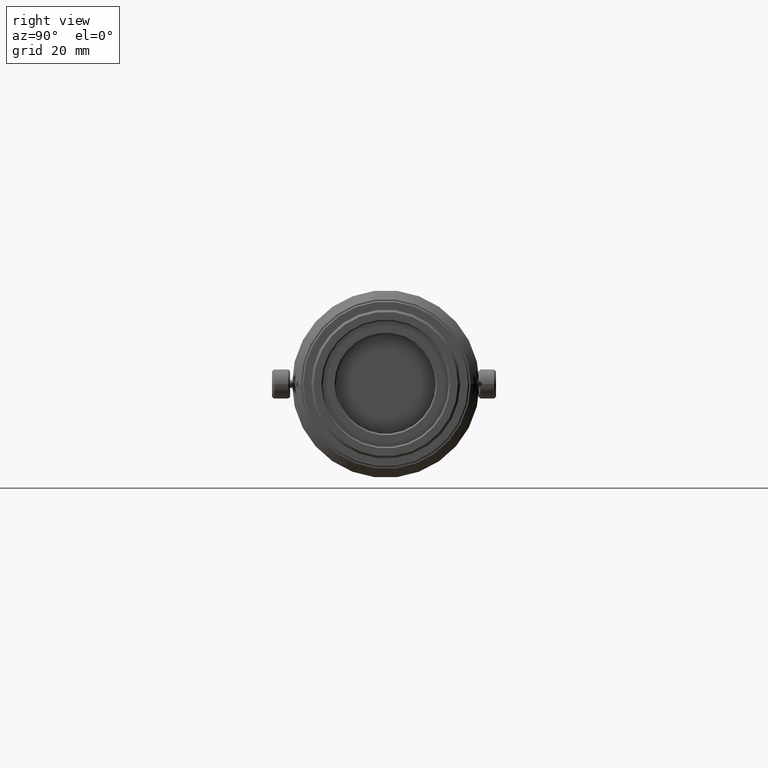
[diagram: clean part render]
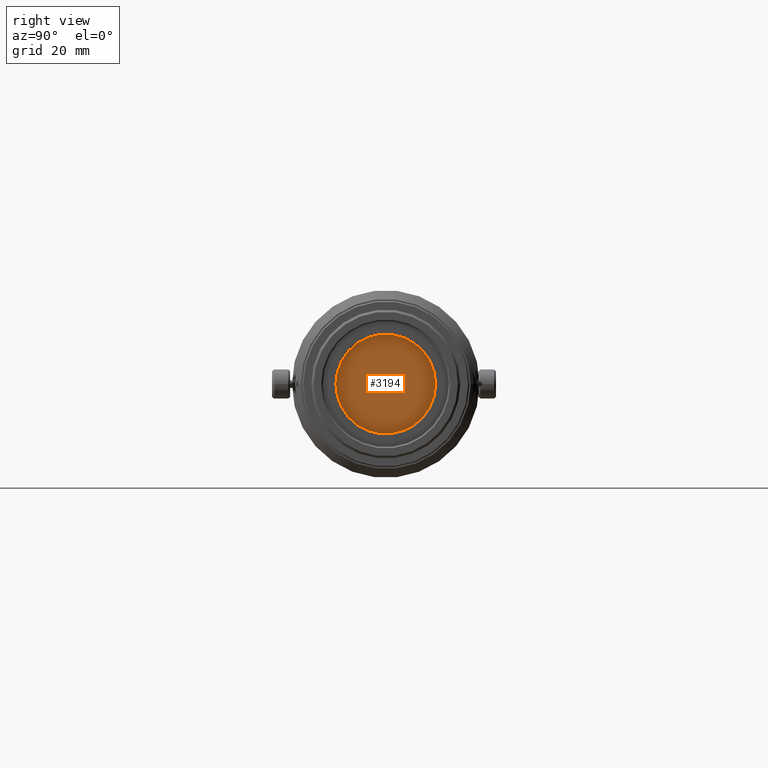
[diagram: same view with one face highlighted and labeled with its STEP entity id]
A machine part, right view. The second image highlights one B-rep face of the part: STEP entity #3194.
In plain terms, the highlighted planar face has unit normal (-1, 0, 0).
Its self-contained STEP definition (entity closure, byte-faithful):
#112 = EDGE_LOOP ( 'NONE', ( #3371, #3163 ) ) ;
#131 = DIRECTION ( 'NONE',  ( 0.0000000000000000000, 1.000000000000000000, 0.0000000000000000000 ) ) ;
#343 = EDGE_CURVE ( 'NONE', #730, #675, #3173, .T. ) ;
#611 = EDGE_CURVE ( 'NONE', #675, #730, #2364, .T. ) ;
#675 = VERTEX_POINT ( 'NONE', #877 ) ;
#681 = DIRECTION ( 'NONE',  ( 0.0000000000000000000, 1.000000000000000000, 0.0000000000000000000 ) ) ;
#730 = VERTEX_POINT ( 'NONE', #3668 ) ;
#753 = DIRECTION ( 'NONE',  ( 1.000000000000000000, -5.556191259460425289E-17, -0.0000000000000000000 ) ) ;
#772 = AXIS2_PLACEMENT_3D ( 'NONE', #1769, #3620, #131 ) ;
#783 = FACE_OUTER_BOUND ( 'NONE', #112, .T. ) ;
#877 = CARTESIAN_POINT ( 'NONE',  ( -26.00000037005256459, 8.500000000000000000, 0.0000000000000000000 ) ) ;
#1486 = PLANE ( 'NONE',  #1915 ) ;
#1769 = CARTESIAN_POINT ( 'NONE',  ( -26.00000037005256459, 1.444609748020538610E-15, 0.0000000000000000000 ) ) ;
#1826 = DIRECTION ( 'NONE',  ( -5.556191259460425289E-17, -1.000000000000000000, 0.0000000000000000000 ) ) ;
#1915 = AXIS2_PLACEMENT_3D ( 'NONE', #3591, #4276, #1826 ) ;
#2364 = CIRCLE ( 'NONE', #772, 8.499999999999998224 ) ;
#3163 = ORIENTED_EDGE ( 'NONE', *, *, #343, .T. ) ;
#3173 = CIRCLE ( 'NONE', #3465, 8.499999999999998224 ) ;
#3194 = ADVANCED_FACE ( 'NONE', ( #783 ), #1486, .F. ) ;
#3371 = ORIENTED_EDGE ( 'NONE', *, *, #611, .T. ) ;
#3465 = AXIS2_PLACEMENT_3D ( 'NONE', #3843, #753, #681 ) ;
#3591 = CARTESIAN_POINT ( 'NONE',  ( -26.00000037005256459, 1.312028605747438041E-32, 0.0000000000000000000 ) ) ;
#3620 = DIRECTION ( 'NONE',  ( 1.000000000000000000, -5.556191259460425289E-17, -0.0000000000000000000 ) ) ;
#3668 = CARTESIAN_POINT ( 'NONE',  ( -26.00000037005256459, -8.499999999999996447, 1.040949779275249943E-15 ) ) ;
#3843 = CARTESIAN_POINT ( 'NONE',  ( -26.00000037005256459, 1.444609748020538610E-15, 0.0000000000000000000 ) ) ;
#4276 = DIRECTION ( 'NONE',  ( -1.000000000000000000, 5.556191259460425289E-17, 0.0000000000000000000 ) ) ;